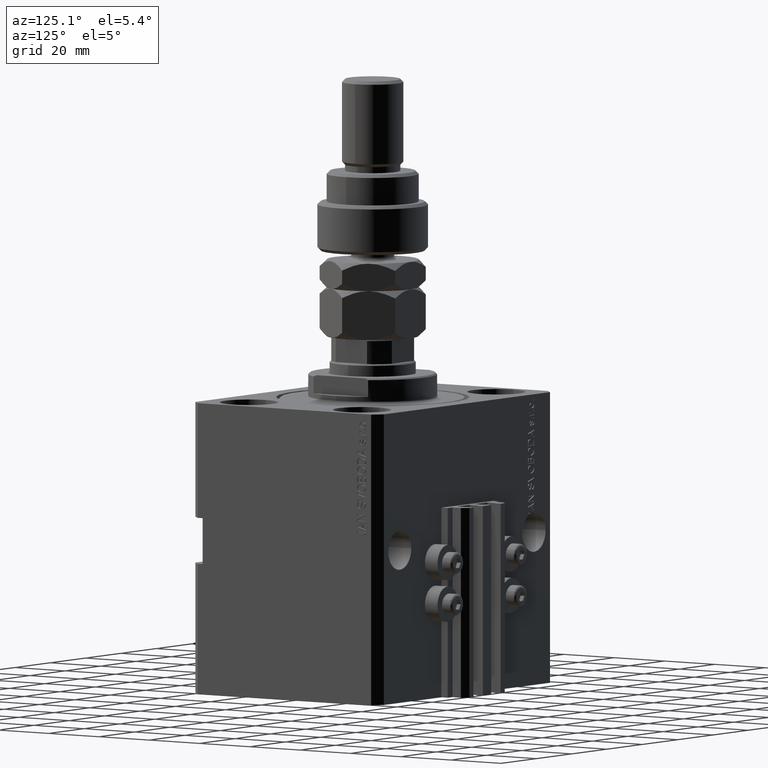
[diagram: clean part render]
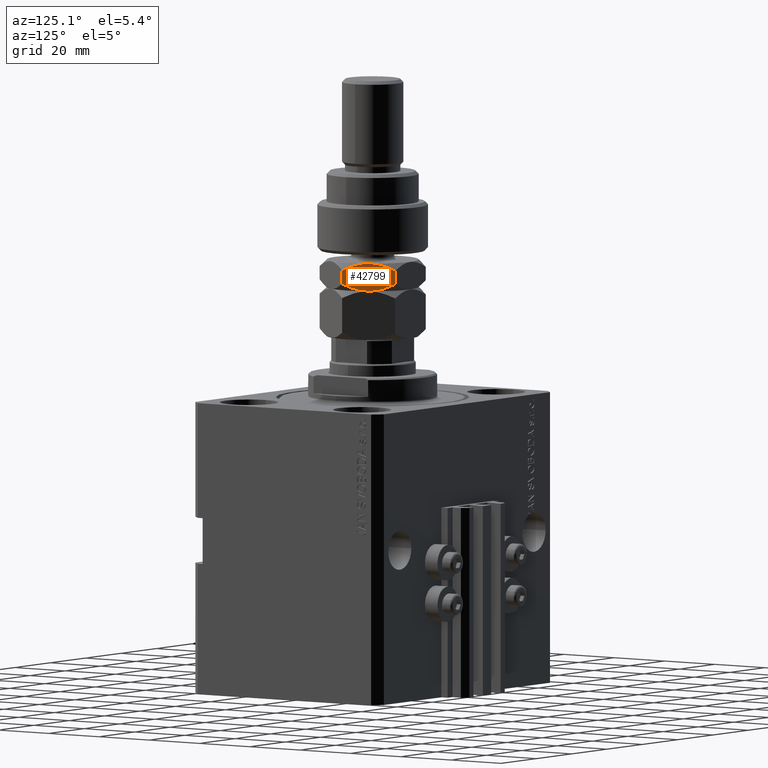
[diagram: same view with one face highlighted and labeled with its STEP entity id]
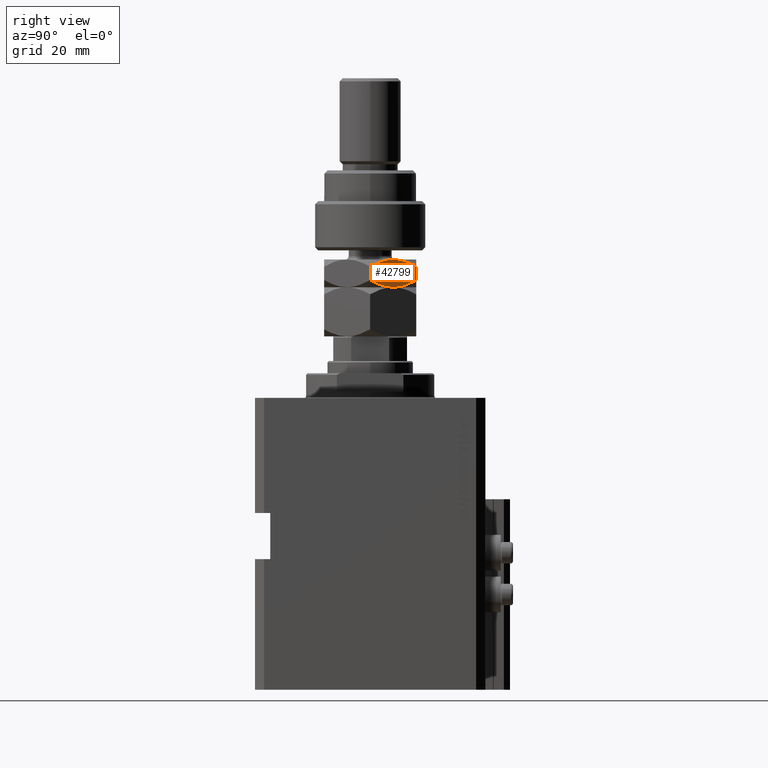
[diagram: same view with one face highlighted and labeled with its STEP entity id]
A machine part, auxiliary view. The second image highlights one B-rep face of the part: STEP entity #42799.
A second angle (right view) of the same face is appended — the face is thin or edge-on in the first view.
In plain terms, the highlighted planar face has unit normal (-0.866, -0.5, 0).
Its self-contained STEP definition (entity closure, byte-faithful):
#245 = LINE ( 'NONE', #17003, #10291 ) ;
#528 = CARTESIAN_POINT ( 'NONE',  ( 14.99999999999999645, 8.660254037844387298, 18.32050807568876394 ) ) ;
#729 = CARTESIAN_POINT ( 'NONE',  ( 14.99999999999999645, 8.660254037844387298, 18.32050807568876394 ) ) ;
#909 = CARTESIAN_POINT ( 'NONE',  ( 8.156876182308248957, 12.61113341608665550, 25.00000000000000355 ) ) ;
#1173 = CARTESIAN_POINT ( 'NONE',  ( 14.99999999999999822, 8.660254037844385522, 22.67949192431123961 ) ) ;
#3275 = CARTESIAN_POINT ( 'NONE',  ( 4.881674457977375425, 14.50207201327940787, 16.28380266194628945 ) ) ;
#3356 = CARTESIAN_POINT ( 'NONE',  ( 13.82525345580783593, 9.338494271363314780, 17.64226784216978317 ) ) ;
#3600 = PLANE ( 'NONE',  #5145 ) ;
#4245 = EDGE_LOOP ( 'NONE', ( #13923, #9735, #17491, #36755, #12650, #42203 ) ) ;
#4894 = CARTESIAN_POINT ( 'NONE',  ( 7.499999999999998224, 12.99038105676657651, 25.00000000000000000 ) ) ;
#5145 = AXIS2_PLACEMENT_3D ( 'NONE', #7178, #7680, #46730 ) ;
#5243 = CARTESIAN_POINT ( 'NONE',  ( 13.82389157469335750, 9.339280553791359907, 23.35851844025819801 ) ) ;
#7178 = CARTESIAN_POINT ( 'NONE',  ( 14.99999999999999645, 8.660254037844385522, 25.00000000000000000 ) ) ;
#7680 = DIRECTION ( 'NONE',  ( -0.5000000000000001110, -0.8660254037844387076, 0.000000000000000000 ) ) ;
#7844 = B_SPLINE_CURVE_WITH_KNOTS ( 'NONE', 3,
 ( #30671, #19937, #47238, #35504, #3356, #528 ),
 .UNSPECIFIED., .F., .F.,
 ( 4, 2, 4 ),
 ( 0.008977392552884448998, 0.01343452311421656359, 0.01789165367554867991 ),
 .UNSPECIFIED. ) ;
#8566 = EDGE_CURVE ( 'NONE', #18120, #32591, #47485, .T. ) ;
#9735 = ORIENTED_EDGE ( 'NONE', *, *, #43039, .F. ) ;
#10062 = CARTESIAN_POINT ( 'NONE',  ( 7.606663105073224303E-16, 17.32050807568877104, 18.32050807568876749 ) ) ;
#10291 = VECTOR ( 'NONE', #20577, 1000.000000000000000 ) ;
#10908 = VERTEX_POINT ( 'NONE', #10062 ) ;
#12650 = ORIENTED_EDGE ( 'NONE', *, *, #49660, .T. ) ;
#13313 = VECTOR ( 'NONE', #38780, 1000.000000000000000 ) ;
#13693 = EDGE_CURVE ( 'NONE', #29569, #18120, #45992, .T. ) ;
#13923 = ORIENTED_EDGE ( 'NONE', *, *, #21881, .F. ) ;
#14247 = CARTESIAN_POINT ( 'NONE',  ( 6.843123817691748378, 13.36962869744649396, 16.00000000000000000 ) ) ;
#14749 = CARTESIAN_POINT ( 'NONE',  ( 2.378834511187505107, 15.94708733029709080, 17.06448606774400290 ) ) ;
#14769 = CARTESIAN_POINT ( 'NONE',  ( 3.803331551779305683E-16, 17.32050807568877104, 25.00000000000000000 ) ) ;
#17003 = CARTESIAN_POINT ( 'NONE',  ( 14.99999999999999645, 8.660254037844385522, 25.00000000000000000 ) ) ;
#17491 = ORIENTED_EDGE ( 'NONE', *, *, #8566, .F. ) ;
#18120 = VERTEX_POINT ( 'NONE', #4894 ) ;
#19937 = CARTESIAN_POINT ( 'NONE',  ( 8.804550678576910983, 12.23719837131868715, 16.00000000000000000 ) ) ;
#20577 = DIRECTION ( 'NONE',  ( -0.000000000000000000, -0.000000000000000000, -1.000000000000000000 ) ) ;
#20813 = CARTESIAN_POINT ( 'NONE',  ( 10.75222765045651308, 11.11270654730956409, 24.55242859148698287 ) ) ;
#21881 = EDGE_CURVE ( 'NONE', #10908, #24233, #38062, .T. ) ;
#21926 = LINE ( 'NONE', #14769, #13313 ) ;
#22640 = CARTESIAN_POINT ( 'NONE',  ( 7.606663105073224303E-16, 17.32050807568877104, 22.67949192431123606 ) ) ;
#24233 = VERTEX_POINT ( 'NONE', #44164 ) ;
#24405 = CARTESIAN_POINT ( 'NONE',  ( 7.499999999999998224, 12.99038105676657651, 25.00000000000000000 ) ) ;
#26590 = FACE_OUTER_BOUND ( 'NONE', #4245, .T. ) ;
#26768 = CARTESIAN_POINT ( 'NONE',  ( 7.606663105073224303E-16, 17.32050807568877104, 18.32050807568876749 ) ) ;
#27735 = CARTESIAN_POINT ( 'NONE',  ( 14.99999999999999822, 8.660254037844385522, 22.67949192431123961 ) ) ;
#29569 = VERTEX_POINT ( 'NONE', #1173 ) ;
#29825 = CARTESIAN_POINT ( 'NONE',  ( 7.500000000000000000, 12.99038105676657651, 16.00000000000000000 ) ) ;
#30671 = CARTESIAN_POINT ( 'NONE',  ( 7.500000000000000000, 12.99038105676657651, 16.00000000000000000 ) ) ;
#31321 = CARTESIAN_POINT ( 'NONE',  ( 8.823580389329297446, 12.22621156269319798, 24.94046462602530667 ) ) ;
#32591 = VERTEX_POINT ( 'NONE', #41153 ) ;
#34672 = CARTESIAN_POINT ( 'NONE',  ( 4.247772349543485149, 14.86805556622358893, 16.44757140851302069 ) ) ;
#35490 = VERTEX_POINT ( 'NONE', #729 ) ;
#35504 = CARTESIAN_POINT ( 'NONE',  ( 12.61607045183964360, 10.03661640420386369, 17.06047903137087829 ) ) ;
#36755 = ORIENTED_EDGE ( 'NONE', *, *, #13693, .F. ) ;
#38062 = B_SPLINE_CURVE_WITH_KNOTS ( 'NONE', 3,
 ( #26768, #41828, #14749, #34672, #3275, #46158, #14247, #29825 ),
 .UNSPECIFIED., .F., .F.,
 ( 4, 2, 2, 4 ),
 ( 2.544309033643862443E-07, 0.004488823491893907842, 0.006733108022389177987, 0.008977392552884448998 ),
 .UNSPECIFIED. ) ;
#38780 = DIRECTION ( 'NONE',  ( -0.000000000000000000, -0.000000000000000000, -1.000000000000000000 ) ) ;
#39237 = CARTESIAN_POINT ( 'NONE',  ( 12.62116548881249223, 10.03367478323605866, 23.93551393225599000 ) ) ;
#39489 = CARTESIAN_POINT ( 'NONE',  ( 10.11832554202262102, 11.47869010025374514, 24.71619733805371055 ) ) ;
#40602 = EDGE_CURVE ( 'NONE', #24233, #35490, #7844, .T. ) ;
#41153 = CARTESIAN_POINT ( 'NONE',  ( 7.606663105073224303E-16, 17.32050807568877104, 22.67949192431123606 ) ) ;
#41531 = CARTESIAN_POINT ( 'NONE',  ( 4.913081180497410827, 14.48393933357810504, 24.76967007806078769 ) ) ;
#41785 = CARTESIAN_POINT ( 'NONE',  ( 7.499999999999998224, 12.99038105676657651, 25.00000000000000000 ) ) ;
#41828 = CARTESIAN_POINT ( 'NONE',  ( 1.176108425306642946, 16.64148155974180199, 17.64148155974179133 ) ) ;
#42041 = CARTESIAN_POINT ( 'NONE',  ( 6.195449321423086353, 13.74356374221446764, 25.00000000000000000 ) ) ;
#42203 = ORIENTED_EDGE ( 'NONE', *, *, #40602, .F. ) ;
#42799 = ADVANCED_FACE ( 'NONE', ( #26590 ), #3600, .F. ) ;
#43039 = EDGE_CURVE ( 'NONE', #32591, #10908, #21926, .T. ) ;
#44164 = CARTESIAN_POINT ( 'NONE',  ( 7.500000000000000000, 12.99038105676657651, 16.00000000000000000 ) ) ;
#45858 = CARTESIAN_POINT ( 'NONE',  ( 1.174746544192161180, 16.64226784216984711, 23.35773215783022039 ) ) ;
#45992 = B_SPLINE_CURVE_WITH_KNOTS ( 'NONE', 3,
 ( #27735, #5243, #39237, #20813, #39489, #31321, #909, #24405 ),
 .UNSPECIFIED., .F., .F.,
 ( 4, 2, 2, 4 ),
 ( 2.544309033627217716E-07, 0.004488823491893905240, 0.006733108022389176252, 0.008977392552884448998 ),
 .UNSPECIFIED. ) ;
#46158 = CARTESIAN_POINT ( 'NONE',  ( 6.176419610670696336, 13.75455055083995681, 16.05953537397469333 ) ) ;
#46730 = DIRECTION ( 'NONE',  ( 0.8660254037844385966, -0.5000000000000000000, 0.000000000000000000 ) ) ;
#47238 = CARTESIAN_POINT ( 'NONE',  ( 10.08691881950258917, 11.49682277995504798, 16.23032992193921586 ) ) ;
#47485 = B_SPLINE_CURVE_WITH_KNOTS ( 'NONE', 3,
 ( #41785, #42041, #41531, #49696, #45858, #22640 ),
 .UNSPECIFIED., .F., .F.,
 ( 4, 2, 4 ),
 ( 0.008977392552884448998, 0.01343452311421656532, 0.01789165367554867991 ),
 .UNSPECIFIED. ) ;
#49660 = EDGE_CURVE ( 'NONE', #29569, #35490, #245, .T. ) ;
#49696 = CARTESIAN_POINT ( 'NONE',  ( 2.383929548160351519, 15.94414570932928576, 23.93952096862912171 ) ) ;